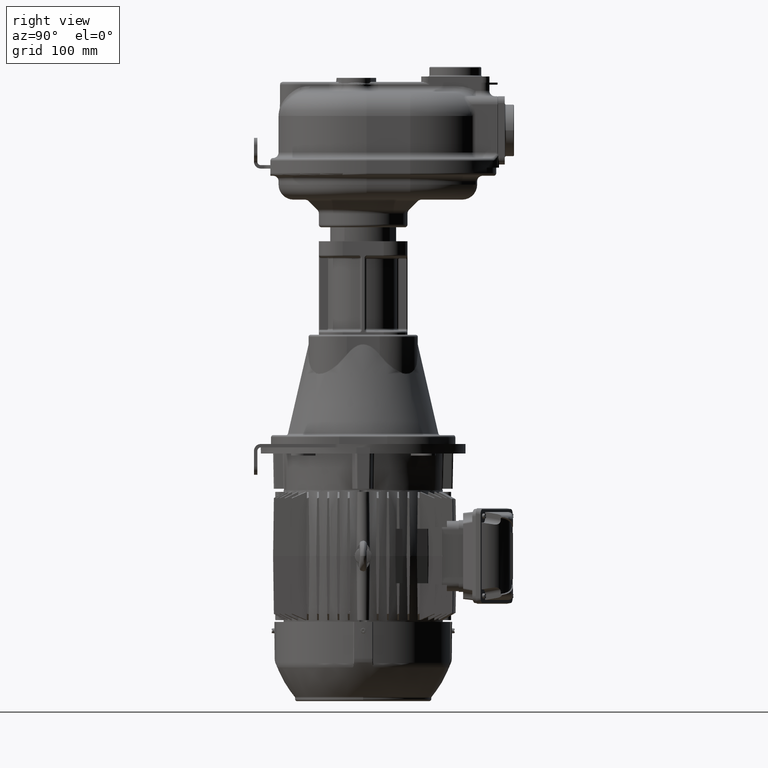
[diagram: clean part render]
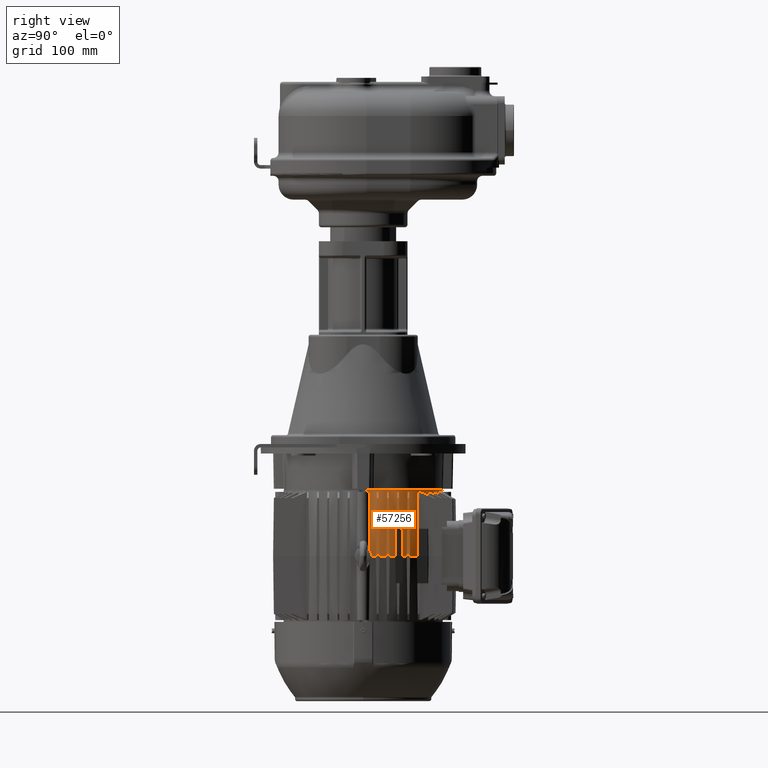
[diagram: same view with one face highlighted and labeled with its STEP entity id]
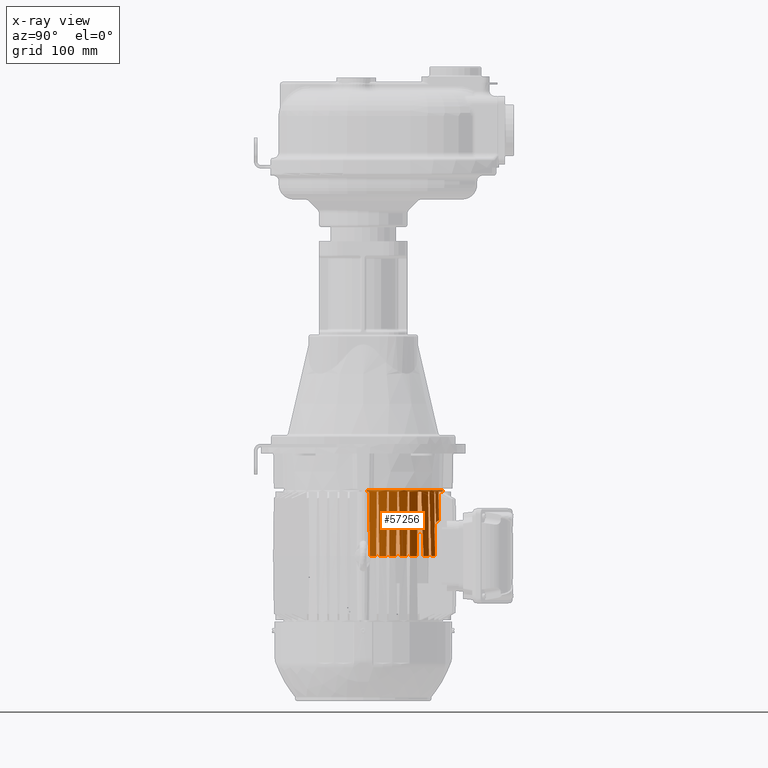
[diagram: x-ray of the same camera — body ghosted, the highlighted face saturated]
A machine part, right view. The second image highlights one B-rep face of the part: STEP entity #57256.
The next image is the same camera in x-ray: the body ghosted, the highlighted face saturated — about 0% of this face is hidden behind the body in this view.
In plain terms, the highlighted conical surface has half-angle 1 deg.
Its self-contained STEP definition (entity closure, byte-faithful):
#5899=CARTESIAN_POINT('',(0.E0,1.6E2,-5.000001E2));
#5900=DIRECTION('',(0.E0,0.E0,1.E0));
#5901=DIRECTION('',(9.989571498478E-1,4.565755981274E-2,0.E0));
#5902=AXIS2_PLACEMENT_3D('',#5899,#5900,#5901);
#6878=CARTESIAN_POINT('',(0.E0,1.6E2,-5.026001E2));
#6879=DIRECTION('',(0.E0,0.E0,-1.E0));
#6880=DIRECTION('',(9.971700773493E-1,7.517869937216E-2,0.E0));
#6881=AXIS2_PLACEMENT_3D('',#6878,#6879,#6880);
#7033=CARTESIAN_POINT('',(5.311731482918E0,2.765273670767E2,-5.026001E2));
#7034=CARTESIAN_POINT('',(5.313071894641E0,2.765222712879E2,-5.023119621164E2));
#7035=CARTESIAN_POINT('',(5.315753653074E0,2.765120708563E2,-5.017351856971E2));
#7036=CARTESIAN_POINT('',(5.319779076563E0,2.764967436724E2,-5.008685205860E2));
#7037=CARTESIAN_POINT('',(5.322464554953E0,2.764865078068E2,-5.002897405764E2));
#7038=CARTESIAN_POINT('',(5.323807756643E0,2.764813854425E2,-5.000001E2));
#7040=CARTESIAN_POINT('',(3.802582807013E1,2.710607824885E2,-5.451001E2));
#7041=CARTESIAN_POINT('',(3.796372650600E1,2.709945203718E2,-5.403561609374E2));
#7042=CARTESIAN_POINT('',(3.783971291929E1,2.708621608184E2,-5.308827618944E2));
#7043=CARTESIAN_POINT('',(3.765426242200E1,2.706641173011E2,-5.167161966796E2));
#7044=CARTESIAN_POINT('',(3.753100616265E1,2.705324164312E2,-5.073006498800E2));
#7045=CARTESIAN_POINT('',(3.746947259403E1,2.704666483274E2,-5.026001E2));
#7047=CARTESIAN_POINT('',(4.993052740597E1,2.654219341605E2,-5.026001E2));
#7048=CARTESIAN_POINT('',(4.986448188289E1,2.655506576651E2,-5.076453181238E2));
#7049=CARTESIAN_POINT('',(4.973203030250E1,2.658084323916E2,-5.177632955828E2));
#7050=CARTESIAN_POINT('',(4.953227450021E1,2.661960654960E2,-5.330226431795E2));
#7051=CARTESIAN_POINT('',(4.939837866374E1,2.664551432539E2,-5.432509473746E2));
#7052=CARTESIAN_POINT('',(4.933124994859E1,2.665848440408E2,-5.483789105499E2));
#7054=CARTESIAN_POINT('',(5.314689576378E1,2.648513009926E2,-5.543484622449E2));
#7055=CARTESIAN_POINT('',(5.307121511279E1,2.647765267041E2,-5.485672166115E2));
#7056=CARTESIAN_POINT('',(5.292012811143E1,2.646272166527E2,-5.370256791706E2));
#7057=CARTESIAN_POINT('',(5.269432272362E1,2.644039697782E2,-5.197764034933E2));
#7058=CARTESIAN_POINT('',(5.254433144954E1,2.642556132481E2,-5.083185686701E2));
#7059=CARTESIAN_POINT('',(5.246947259403E1,2.641815541009E2,-5.026001E2));
#7061=CARTESIAN_POINT('',(5.37E1,2.653974934472E2,-5.966001E2));
#7062=CARTESIAN_POINT('',(5.37E1,2.653132668665E2,-5.923006480985E2));
#7063=CARTESIAN_POINT('',(5.37E1,2.651450551819E2,-5.837161950876E2));
#7064=CARTESIAN_POINT('',(5.37E1,2.648934646323E2,-5.708829792208E2));
#7065=CARTESIAN_POINT('',(5.37E1,2.647262181319E2,-5.623562551765E2));
#7066=CARTESIAN_POINT('',(5.37E1,2.646427154397E2,-5.581001E2));
#7068=CARTESIAN_POINT('',(0.E0,1.6E2,-5.966001E2));
#7069=DIRECTION('',(0.E0,0.E0,1.E0));
#7070=DIRECTION('',(5.385109551258E-1,8.426185087034E-1,0.E0));
#7071=AXIS2_PLACEMENT_3D('',#7068,#7069,#7070);
#7073=CARTESIAN_POINT('',(6.493052740597E1,2.569064929711E2,-5.026001E2));
#7074=CARTESIAN_POINT('',(6.479657741282E1,2.572112379461E2,-5.128325412240E2));
#7075=CARTESIAN_POINT('',(6.452682770315E1,2.578224929621E2,-5.334387240580E2));
#7076=CARTESIAN_POINT('',(6.411669016899E1,2.587444960458E2,-5.647691341110E2));
#7077=CARTESIAN_POINT('',(6.383951733560E1,2.593626800933E2,-5.859423694348E2));
#7078=CARTESIAN_POINT('',(6.37E1,2.596726222438E2,-5.966001E2));
#7080=CARTESIAN_POINT('',(0.E0,1.6E2,-5.026001E2));
#7081=DIRECTION('',(0.E0,0.E0,1.E0));
#7082=DIRECTION('',(5.784004844715E-1,8.157529525310E-1,0.E0));
#7083=AXIS2_PLACEMENT_3D('',#7080,#7081,#7082);
#7085=CARTESIAN_POINT('',(6.87E1,2.562945046457E2,-5.966001E2));
#7086=CARTESIAN_POINT('',(6.856192596104E1,2.561668529072E2,-5.860526228785E2));
#7087=CARTESIAN_POINT('',(6.828667723021E1,2.559123352781E2,-5.650263697673E2));
#7088=CARTESIAN_POINT('',(6.787651561614E1,2.555329298701E2,-5.336941202493E2));
#7089=CARTESIAN_POINT('',(6.760485531255E1,2.552815494650E2,-5.129419871286E2));
#7090=CARTESIAN_POINT('',(6.746947259403E1,2.551562506463E2,-5.026001E2));
#7092=CARTESIAN_POINT('',(0.E0,1.6E2,-5.966001E2));
#7093=DIRECTION('',(0.E0,0.E0,1.E0));
#7094=DIRECTION('',(6.653188723454E-1,7.465593064861E-1,0.E0));
#7095=AXIS2_PLACEMENT_3D('',#7092,#7093,#7094);
#7097=CARTESIAN_POINT('',(7.993052740597E1,2.449585343434E2,-5.026001E2));
#7098=CARTESIAN_POINT('',(7.979755463355E1,2.453270777997E2,-5.127578913236E2));
#7099=CARTESIAN_POINT('',(7.952910817101E1,2.460667849866E2,-5.332645190965E2));
#7100=CARTESIAN_POINT('',(7.911899327153E1,2.471838338896E2,-5.645932000866E2));
#7101=CARTESIAN_POINT('',(7.884050450156E1,2.479336984696E2,-5.858669598177E2));
#7102=CARTESIAN_POINT('',(7.87E1,2.483098614253E2,-5.966001E2));
#7104=CARTESIAN_POINT('',(0.E0,1.6E2,-5.026001E2));
#7105=DIRECTION('',(0.E0,0.E0,1.E0));
#7106=DIRECTION('',(7.069920820267E-1,7.072214617441E-1,0.E0));
#7107=AXIS2_PLACEMENT_3D('',#7104,#7105,#7106);
#7109=CARTESIAN_POINT('',(8.270358786120E1,2.427035878612E2,-5.204841674393E2));
#7110=CARTESIAN_POINT('',(8.267752438844E1,2.426805033949E2,-5.184931785121E2));
#7111=CARTESIAN_POINT('',(8.262543122105E1,2.426343642187E2,-5.145137809709E2));
#7112=CARTESIAN_POINT('',(8.254739290823E1,2.425652448163E2,-5.085524335277E2));
#7113=CARTESIAN_POINT('',(8.249543478424E1,2.425192246058E2,-5.045833519526E2));
#7114=CARTESIAN_POINT('',(8.246947259403E1,2.424962293637E2,-5.026001E2));
#7116=CARTESIAN_POINT('',(8.249622936373E1,2.424694725940E2,-5.026001E2));
#7117=CARTESIAN_POINT('',(8.251922460576E1,2.424954347842E2,-5.045833519526E2));
#7118=CARTESIAN_POINT('',(8.256524481626E1,2.425473929082E2,-5.085524335277E2));
#7119=CARTESIAN_POINT('',(8.263436421871E1,2.426254312211E2,-5.145137809709E2));
#7120=CARTESIAN_POINT('',(8.268050339490E1,2.426775243884E2,-5.184931785121E2));
#7121=CARTESIAN_POINT('',(8.270358786120E1,2.427035878612E2,-5.204841674393E2));
#7123=CARTESIAN_POINT('',(0.E0,1.6E2,-5.026001E2));
#7124=DIRECTION('',(0.E0,0.E0,1.E0));
#7125=DIRECTION('',(7.283302438108E-1,6.852262808376E-1,0.E0));
#7126=AXIS2_PLACEMENT_3D('',#7123,#7124,#7125);
#7128=CARTESIAN_POINT('',(8.830986142530E1,2.387E2,-5.966001E2));
#7129=CARTESIAN_POINT('',(8.793369841841E1,2.388405045207E2,-5.858669583557E2));
#7130=CARTESIAN_POINT('',(8.718383376887E1,2.391189933162E2,-5.645931966757E2));
#7131=CARTESIAN_POINT('',(8.606678486535E1,2.395291082152E2,-5.332645157211E2));
#7132=CARTESIAN_POINT('',(8.532707774718E1,2.397975546525E2,-5.127578898771E2));
#7133=CARTESIAN_POINT('',(8.495853434336E1,2.399305274060E2,-5.026001E2));
#7135=CARTESIAN_POINT('',(0.E0,1.6E2,-5.966001E2));
#7136=DIRECTION('',(0.E0,0.E0,1.E0));
#7137=DIRECTION('',(8.140603715873E-1,5.807802608657E-1,0.E0));
#7138=AXIS2_PLACEMENT_3D('',#7135,#7136,#7137);
#7140=CARTESIAN_POINT('',(9.515625064626E1,2.274694725940E2,-5.026001E2));
#7141=CARTESIAN_POINT('',(9.528154946509E1,2.276048553127E2,-5.129419871370E2));
#7142=CARTESIAN_POINT('',(9.553292987033E1,2.278765156164E2,-5.336941202688E2));
#7143=CARTESIAN_POINT('',(9.591233527835E1,2.282866772305E2,-5.650263697868E2));
#7144=CARTESIAN_POINT('',(9.616685290735E1,2.285619259612E2,-5.860526228869E2));
#7145=CARTESIAN_POINT('',(9.629450464568E1,2.287E2,-5.966001E2));
#7147=CARTESIAN_POINT('',(0.E0,1.6E2,-5.026001E2));
#7148=DIRECTION('',(0.E0,0.E0,1.E0));
#7149=DIRECTION('',(8.307573829748E-1,5.566346832824E-1,0.E0));
#7150=AXIS2_PLACEMENT_3D('',#7147,#7148,#7149);
#7152=CARTESIAN_POINT('',(9.967262224380E1,2.237E2,-5.966001E2));
#7153=CARTESIAN_POINT('',(9.936268007142E1,2.238395173454E2,-5.859423686829E2));
#7154=CARTESIAN_POINT('',(9.874449599444E1,2.241166901920E2,-5.647691323566E2));
#7155=CARTESIAN_POINT('',(9.782249291056E1,2.245268277259E2,-5.334387223160E2));
#7156=CARTESIAN_POINT('',(9.721123792389E1,2.247965774226E2,-5.128325404775E2));
#7157=CARTESIAN_POINT('',(9.690649297107E1,2.249305274060E2,-5.026001E2));
#7159=CARTESIAN_POINT('',(0.E0,1.6E2,-5.966001E2));
#7160=DIRECTION('',(0.E0,0.E0,1.E0));
#7161=DIRECTION('',(8.910157749470E-1,4.539723436461E-1,0.E0));
#7162=AXIS2_PLACEMENT_3D('',#7159,#7160,#7161);
#7164=CARTESIAN_POINT('',(1.041815541009E2,2.124694725940E2,-5.026001E2));
#7165=CARTESIAN_POINT('',(1.043173417753E2,2.126067265360E2,-5.130849299024E2));
#7166=CARTESIAN_POINT('',(1.045883951921E2,2.128808180123E2,-5.340227803321E2));
#7167=CARTESIAN_POINT('',(1.049883044208E2,2.132855253768E2,-5.649383796721E2));
#7168=CARTESIAN_POINT('',(1.052607020720E2,2.135614049698E2,-5.860128243521E2));
#7169=CARTESIAN_POINT('',(1.053974934472E2,2.137E2,-5.966001E2));
#7171=CARTESIAN_POINT('',(0.E0,1.6E2,-5.026001E2));
#7172=DIRECTION('',(0.E0,0.E0,1.E0));
#7173=DIRECTION('',(9.037583287368E-1,4.280430857272E-1,0.E0));
#7174=AXIS2_PLACEMENT_3D('',#7171,#7172,#7173);
#7176=CARTESIAN_POINT('',(1.067926210735E2,2.092236286834E2,-5.566001E2));
#7177=CARTESIAN_POINT('',(1.066396438860E2,2.093029265789E2,-5.505425330246E2));
#7178=CARTESIAN_POINT('',(1.063341388308E2,2.094610199094E2,-5.384657820377E2));
#7179=CARTESIAN_POINT('',(1.058772489593E2,2.096966473324E2,-5.204662010016E2));
#7180=CARTESIAN_POINT('',(1.055735538623E2,2.098527342900E2,-5.085427168500E2));
#7181=CARTESIAN_POINT('',(1.054219341605E2,2.099305274060E2,-5.026001E2));
#7183=CARTESIAN_POINT('',(1.080690359266E2,2.080978700033E2,-5.966001E2));
#7184=CARTESIAN_POINT('',(1.079551779972E2,2.081615040694E2,-5.921231040478E2));
#7185=CARTESIAN_POINT('',(1.077277053293E2,2.082884772036E2,-5.831908152538E2));
#7186=CARTESIAN_POINT('',(1.073872345184E2,2.084780493422E2,-5.698576587456E2));
#7187=CARTESIAN_POINT('',(1.071607404587E2,2.086038436955E2,-5.610120705236E2));
#7188=CARTESIAN_POINT('',(1.070476164915E2,2.086665936756E2,-5.566001E2));
#7190=CARTESIAN_POINT('',(0.E0,1.6E2,-5.966001E2));
#7191=DIRECTION('',(0.E0,0.E0,1.E0));
#7192=DIRECTION('',(9.449674269947E-1,3.271644264265E-1,0.E0));
#7193=AXIS2_PLACEMENT_3D('',#7190,#7191,#7192);
#7195=CARTESIAN_POINT('',(1.104666483274E2,1.974694725940E2,-5.026001E2));
#7196=CARTESIAN_POINT('',(1.106135780371E2,1.976069421098E2,-5.131013975863E2));
#7197=CARTESIAN_POINT('',(1.109066388342E2,1.978813108525E2,-5.340604284015E2));
#7198=CARTESIAN_POINT('',(1.113374571163E2,1.982851490311E2,-5.649096306216E2));
#7199=CARTESIAN_POINT('',(1.116316318838E2,1.985612393217E2,-5.860001704956E2));
#7200=CARTESIAN_POINT('',(1.117793881937E2,1.987E2,-5.966001E2));
#7202=CARTESIAN_POINT('',(0.E0,1.6E2,-5.026001E2));
#7203=DIRECTION('',(0.E0,0.E0,1.E0));
#7204=DIRECTION('',(9.541115271453E-1,2.994514881720E-1,0.E0));
#7205=AXIS2_PLACEMENT_3D('',#7202,#7203,#7204);
#7207=CARTESIAN_POINT('',(1.133870875583E2,1.937E2,-5.966001E2));
#7208=CARTESIAN_POINT('',(1.131529646483E2,1.938386777838E2,-5.860065028030E2));
#7209=CARTESIAN_POINT('',(1.126858623645E2,1.941147313982E2,-5.649187646317E2));
#7210=CARTESIAN_POINT('',(1.119887080650E2,1.945248838866E2,-5.335872122239E2));
#7211=CARTESIAN_POINT('',(1.115262170053E2,1.947957444273E2,-5.128961729943E2));
#7212=CARTESIAN_POINT('',(1.112955525810E2,1.949305274060E2,-5.026001E2));
#7214=CARTESIAN_POINT('',(0.E0,1.6E2,-5.966001E2));
#7215=DIRECTION('',(0.E0,0.E0,1.E0));
#7216=DIRECTION('',(9.797230574088E-1,2.003565092069E-1,0.E0));
#7217=AXIS2_PLACEMENT_3D('',#7214,#7215,#7216);
#7219=CARTESIAN_POINT('',(1.144638133670E2,1.824694725940E2,-5.026001E2));
#7220=CARTESIAN_POINT('',(1.146210954486E2,1.826047645225E2,-5.129350516775E2));
#7221=CARTESIAN_POINT('',(1.149364951115E2,1.828763037583E2,-5.336779364288E2));
#7222=CARTESIAN_POINT('',(1.154120770430E2,1.832864641748E2,-5.650100944641E2));
#7223=CARTESIAN_POINT('',(1.157308156627E2,1.835618346454E2,-5.860456472767E2));
#7224=CARTESIAN_POINT('',(1.158906019699E2,1.837E2,-5.966001E2));
#7226=CARTESIAN_POINT('',(0.E0,1.6E2,-5.026001E2));
#7227=DIRECTION('',(0.E0,0.E0,1.E0));
#7228=DIRECTION('',(9.852953353073E-1,1.708598906168E-1,0.E0));
#7229=AXIS2_PLACEMENT_3D('',#7226,#7227,#7228);
#7231=CARTESIAN_POINT('',(1.168016764647E2,1.787E2,-5.966001E2));
#7232=CARTESIAN_POINT('',(1.165925199072E2,1.788384708324E2,-5.860223118218E2));
#7233=CARTESIAN_POINT('',(1.161752243728E2,1.791142485511E2,-5.649556493280E2));
#7234=CARTESIAN_POINT('',(1.155523832584E2,1.795244043114E2,-5.336238469772E2));
#7235=CARTESIAN_POINT('',(1.151391801307E2,1.797955389120E2,-5.129118723099E2));
#7236=CARTESIAN_POINT('',(1.149330929127E2,1.799305274060E2,-5.026001E2));
#7238=CARTESIAN_POINT('',(0.E0,1.6E2,-5.966001E2));
#7239=DIRECTION('',(0.E0,0.E0,1.E0));
#7240=DIRECTION('',(9.963842515472E-1,8.496130453712E-2,0.E0));
#7241=AXIS2_PLACEMENT_3D('',#7238,#7239,#7240);
#7243=CARTESIAN_POINT('',(1.178546663032E2,1.699912022322E2,-5.959280384393E2));
#7244=CARTESIAN_POINT('',(1.178569290827E2,1.700108014840E2,-5.961520589120E2));
#7245=CARTESIAN_POINT('',(1.178591871031E2,1.700304007399E2,-5.963760794322E2));
#7246=CARTESIAN_POINT('',(1.178614403652E2,1.7005E2,-5.966001000001E2));
#7248=CARTESIAN_POINT('',(1.163182621930E2,1.687694725940E2,-5.026001E2));
#7249=CARTESIAN_POINT('',(1.164876782879E2,1.689037396405E2,-5.128567609279E2));
#7250=CARTESIAN_POINT('',(1.168273772150E2,1.691732606722E2,-5.334454750502E2));
#7251=CARTESIAN_POINT('',(1.173394966931E2,1.695804878205E2,-5.645535607002E2));
#7252=CARTESIAN_POINT('',(1.176826553781E2,1.698539667571E2,-5.854446192164E2));
#7253=CARTESIAN_POINT('',(1.178546663032E2,1.699912022322E2,-5.959280384393E2));
#7255=CARTESIAN_POINT('',(1.164813854425E2,1.653238077566E2,-5.000001E2));
#7256=CARTESIAN_POINT('',(1.164865077968E2,1.653224645576E2,-5.002897400100E2));
#7257=CARTESIAN_POINT('',(1.164967436490E2,1.653197790827E2,-5.008685192643E2));
#7258=CARTESIAN_POINT('',(1.165120708330E2,1.653157536592E2,-5.017351843784E2));
#7259=CARTESIAN_POINT('',(1.165222712779E2,1.653130718973E2,-5.023119615512E2));
#7260=CARTESIAN_POINT('',(1.165273670767E2,1.653117314829E2,-5.026001E2));
#7270=CARTESIAN_POINT('',(0.E0,1.6E2,-5.026001E2));
#7271=DIRECTION('',(0.E0,0.E0,-1.E0));
#7272=DIRECTION('',(4.553626914485E-2,9.989626860861E-1,0.E0));
#7273=AXIS2_PLACEMENT_3D('',#7270,#7271,#7272);
#7347=CARTESIAN_POINT('',(0.E0,1.6E2,-5.026001E2));
#7348=DIRECTION('',(0.E0,0.E0,-1.E0));
#7349=DIRECTION('',(7.517869937216E-2,9.971700773493E-1,0.E0));
#7350=AXIS2_PLACEMENT_3D('',#7347,#7348,#7349);
#7447=CARTESIAN_POINT('',(0.E0,1.6E2,-5.451001E2));
#7448=DIRECTION('',(0.E0,0.E0,-1.E0));
#7449=DIRECTION('',(3.239267449742E-1,9.460821655070E-1,0.E0));
#7450=AXIS2_PLACEMENT_3D('',#7447,#7448,#7449);
#22537=CARTESIAN_POINT('',(1.053974934472E2,2.137E2,-5.966001E2));
#22544=CARTESIAN_POINT('',(9.629450464568E1,2.287E2,-5.966001E2));
#27761=CARTESIAN_POINT('',(0.E0,1.6E2,-5.566001E2));
#27762=DIRECTION('',(0.E0,0.E0,-1.E0));
#27763=DIRECTION('',(9.081704734950E-1,4.186005148969E-1,0.E0));
#27764=AXIS2_PLACEMENT_3D('',#27761,#27762,#27763);
#28039=CARTESIAN_POINT('',(8.830986142530E1,2.387E2,-5.966001E2));
#28083=CARTESIAN_POINT('',(8.249622936373E1,2.424694725940E2,-5.026001E2));
#28092=CARTESIAN_POINT('',(8.495853434336E1,2.399305274060E2,-5.026001E2));
#28295=CARTESIAN_POINT('',(8.246947259403E1,2.424962293637E2,-5.026001E2));
#28322=CARTESIAN_POINT('',(7.993052740597E1,2.449585343434E2,-5.026001E2));
#33031=CARTESIAN_POINT('',(5.314689576378E1,2.648513009926E2,
-5.543484622449E2));
#33032=CARTESIAN_POINT('',(5.318053451809E1,2.648364342420E2,
-5.544600663218E2));
#33033=CARTESIAN_POINT('',(5.324472138430E1,2.648082407825E2,
-5.546838860437E2));
#33034=CARTESIAN_POINT('',(5.333173283468E1,2.647705952799E2,
-5.550211932367E2));
#33035=CARTESIAN_POINT('',(5.340948255452E1,2.647376137434E2,
-5.553598123816E2));
#33036=CARTESIAN_POINT('',(5.347798420452E1,2.647093088309E2,
-5.556994672354E2));
#33037=CARTESIAN_POINT('',(5.353728865868E1,2.646856744627E2,
-5.560400549693E2));
#33038=CARTESIAN_POINT('',(5.358744536334E1,2.646667036367E2,
-5.563815512493E2));
#33039=CARTESIAN_POINT('',(5.362848035683E1,2.646523971383E2,
-5.567238766253E2));
#33040=CARTESIAN_POINT('',(5.366041517071E1,2.646427565666E2,
-5.570670309418E2));
#33041=CARTESIAN_POINT('',(5.368324710340E1,2.646377920311E2,
-5.574109684250E2));
#33042=CARTESIAN_POINT('',(5.369695347551E1,2.646375164148E2,
-5.577554146357E2));
#33043=CARTESIAN_POINT('',(5.37E1,2.646404612685E2,-5.579852042756E2));
#33044=CARTESIAN_POINT('',(5.37E1,2.646427154397E2,-5.581001E2));
#33062=CARTESIAN_POINT('',(4.07E1,2.701089052138E2,-5.451001E2));
#33063=CARTESIAN_POINT('',(4.083103156064E1,2.700604714880E2,-5.451001E2));
#33064=CARTESIAN_POINT('',(4.109324512075E1,2.699630903532E2,
-5.451040620227E2));
#33065=CARTESIAN_POINT('',(4.148673594281E1,2.698155732894E2,
-5.451219327993E2));
#33066=CARTESIAN_POINT('',(4.187995957178E1,2.696667707246E2,
-5.451517570125E2));
#33067=CARTESIAN_POINT('',(4.227251264714E1,2.695168362053E2,
-5.451935435960E2));
#33068=CARTESIAN_POINT('',(4.266397290510E1,2.693659368238E2,
-5.452472835029E2));
#33069=CARTESIAN_POINT('',(4.305391632867E1,2.692142469751E2,
-5.453129490029E2));
#33070=CARTESIAN_POINT('',(4.344191309701E1,2.690619499495E2,
-5.453904926706E2));
#33071=CARTESIAN_POINT('',(4.382753113893E1,2.689092366174E2,
-5.454798468946E2));
#33072=CARTESIAN_POINT('',(4.421033334809E1,2.687563065419E2,
-5.455809222712E2));
#33073=CARTESIAN_POINT('',(4.458988244260E1,2.686033660453E2,
-5.456936075361E2));
#33074=CARTESIAN_POINT('',(4.496574563312E1,2.684506262084E2,
-5.458177703720E2));
#33075=CARTESIAN_POINT('',(4.533749170956E1,2.682983038785E2,
-5.459532559969E2));
#33076=CARTESIAN_POINT('',(4.570469495053E1,2.681466198849E2,
-5.460998877671E2));
#33077=CARTESIAN_POINT('',(4.606693631976E1,2.679957982774E2,
-5.462574672547E2));
#33078=CARTESIAN_POINT('',(4.642380505818E1,2.678460653583E2,
-5.464257744945E2));
#33079=CARTESIAN_POINT('',(4.677490207534E1,2.676976478910E2,
-5.466045694316E2));
#33080=CARTESIAN_POINT('',(4.711983742668E1,2.675507737571E2,
-5.467935905330E2));
#33081=CARTESIAN_POINT('',(4.745823621709E1,2.674056690221E2,
-5.469925576646E2));
#33082=CARTESIAN_POINT('',(4.778974205160E1,2.672625559276E2,
-5.472011748150E2));
#33083=CARTESIAN_POINT('',(4.811401520090E1,2.671216531335E2,
-5.474191297112E2));
#33084=CARTESIAN_POINT('',(4.843073620050E1,2.669831735888E2,
-5.476460971686E2));
#33085=CARTESIAN_POINT('',(4.873960198749E1,2.668473256785E2,
-5.478817366185E2));
#33086=CARTESIAN_POINT('',(4.904034434565E1,2.667143044264E2,
-5.481257094080E2));
#33087=CARTESIAN_POINT('',(4.923522768923E1,2.666276467331E2,
-5.482936543037E2));
#33088=CARTESIAN_POINT('',(4.933124994859E1,2.665848440408E2,
-5.483789105499E2));
#33116=CARTESIAN_POINT('',(0.E0,1.6E2,-5.026001E2));
#33117=DIRECTION('',(0.E0,0.E0,-1.E0));
#33118=DIRECTION('',(4.280430857272E-1,9.037583287368E-1,0.E0));
#33119=AXIS2_PLACEMENT_3D('',#33116,#33117,#33118);
#42247=VERTEX_POINT('',#28322);
#42270=CARTESIAN_POINT('',(3.802582807013E1,2.710607824885E2,-5.451001E2));
#42272=VERTEX_POINT('',#42270);
#42326=CARTESIAN_POINT('',(1.163182621930E2,1.687694725940E2,-5.026001E2));
#42328=VERTEX_POINT('',#42326);
#42359=CARTESIAN_POINT('',(1.178546663032E2,1.699912022322E2,
-5.959280384393E2));
#42361=VERTEX_POINT('',#42359);
#42402=VERTEX_POINT('',#28092);
#42404=VERTEX_POINT('',#28295);
#42476=CARTESIAN_POINT('',(8.769472594026E0,2.763182621930E2,-5.026001E2));
#42477=VERTEX_POINT('',#42476);
#42510=VERTEX_POINT('',#22544);
#42515=VERTEX_POINT('',#28039);
#42539=VERTEX_POINT('',#22537);
#42549=VERTEX_POINT('',#28083);
#42559=CARTESIAN_POINT('',(8.270358786120E1,2.427035878612E2,
-5.204841674393E2));
#42560=VERTEX_POINT('',#42559);
#42563=VERTEX_POINT('',#7033);
#42564=VERTEX_POINT('',#7038);
#42582=CARTESIAN_POINT('',(1.165273670767E2,1.653117314829E2,-5.026001E2));
#42584=VERTEX_POINT('',#42582);
#42689=VERTEX_POINT('',#7219);
#42690=VERTEX_POINT('',#7224);
#42691=VERTEX_POINT('',#7207);
#42692=VERTEX_POINT('',#7212);
#42693=CARTESIAN_POINT('',(1.104666483274E2,1.974694725940E2,-5.026001E2));
#42694=VERTEX_POINT('',#42693);
#42695=VERTEX_POINT('',#7200);
#42696=VERTEX_POINT('',#7176);
#42697=VERTEX_POINT('',#7181);
#42699=CARTESIAN_POINT('',(1.041815541009E2,2.124694725940E2,-5.026001E2));
#42700=VERTEX_POINT('',#42699);
#42701=VERTEX_POINT('',#7140);
#42702=CARTESIAN_POINT('',(9.967262224380E1,2.237E2,-5.966001E2));
#42703=VERTEX_POINT('',#42702);
#42704=CARTESIAN_POINT('',(9.690649297107E1,2.249305274060E2,-5.026001E2));
#42705=VERTEX_POINT('',#42704);
#42714=VERTEX_POINT('',#7183);
#42715=VERTEX_POINT('',#7188);
#42716=CARTESIAN_POINT('',(1.164813854425E2,1.653238077566E2,-5.000001E2));
#42717=VERTEX_POINT('',#42716);
#42734=VERTEX_POINT('',#7246);
#42735=VERTEX_POINT('',#7231);
#42736=VERTEX_POINT('',#7236);
#42748=CARTESIAN_POINT('',(3.746947259403E1,2.704666483274E2,-5.026001E2));
#42749=VERTEX_POINT('',#42748);
#42750=CARTESIAN_POINT('',(4.993052740597E1,2.654219341605E2,-5.026001E2));
#42751=CARTESIAN_POINT('',(5.246947259403E1,2.641815541009E2,-5.026001E2));
#42752=VERTEX_POINT('',#42750);
#42753=VERTEX_POINT('',#42751);
#42754=CARTESIAN_POINT('',(7.87E1,2.483098614253E2,-5.966001E2));
#42755=CARTESIAN_POINT('',(6.87E1,2.562945046457E2,-5.966001E2));
#42756=VERTEX_POINT('',#42754);
#42757=VERTEX_POINT('',#42755);
#42758=CARTESIAN_POINT('',(6.746947259403E1,2.551562506463E2,-5.026001E2));
#42759=CARTESIAN_POINT('',(6.493052740597E1,2.569064929711E2,-5.026001E2));
#42760=VERTEX_POINT('',#42758);
#42761=VERTEX_POINT('',#42759);
#42762=VERTEX_POINT('',#7054);
#42763=VERTEX_POINT('',#7052);
#42764=VERTEX_POINT('',#33062);
#42768=VERTEX_POINT('',#33044);
#42769=VERTEX_POINT('',#7078);
#42770=CARTESIAN_POINT('',(5.37E1,2.653974934472E2,-5.966001E2));
#42771=VERTEX_POINT('',#42770);
#57162=CARTESIAN_POINT('',(0.E0,1.6E2,-5.483001E2));
#57163=DIRECTION('',(0.E0,0.E0,-1.E0));
#57164=DIRECTION('',(0.E0,1.E0,0.E0));
#57165=AXIS2_PLACEMENT_3D('',#57162,#57163,#57164);
#57166=CONICAL_SURFACE('',#57165,1.174460645191E2,1.E0);
#57167=ORIENTED_EDGE('',*,*,#56360,.T.);
#57168=ORIENTED_EDGE('',*,*,#56379,.F.);
#57170=ORIENTED_EDGE('',*,*,#57169,.T.);
#57172=ORIENTED_EDGE('',*,*,#57171,.T.);
#57174=ORIENTED_EDGE('',*,*,#57173,.F.);
#57176=ORIENTED_EDGE('',*,*,#57175,.T.);
#57178=ORIENTED_EDGE('',*,*,#57177,.T.);
#57180=ORIENTED_EDGE('',*,*,#57179,.F.);
#57182=ORIENTED_EDGE('',*,*,#57181,.T.);
#57184=ORIENTED_EDGE('',*,*,#57183,.F.);
#57186=ORIENTED_EDGE('',*,*,#57185,.T.);
#57188=ORIENTED_EDGE('',*,*,#57187,.F.);
#57190=ORIENTED_EDGE('',*,*,#57189,.F.);
#57192=ORIENTED_EDGE('',*,*,#57191,.F.);
#57194=ORIENTED_EDGE('',*,*,#57193,.F.);
#57196=ORIENTED_EDGE('',*,*,#57195,.F.);
#57198=ORIENTED_EDGE('',*,*,#57197,.F.);
#57200=ORIENTED_EDGE('',*,*,#57199,.F.);
#57202=ORIENTED_EDGE('',*,*,#57201,.F.);
#57204=ORIENTED_EDGE('',*,*,#57203,.F.);
#57206=ORIENTED_EDGE('',*,*,#57205,.F.);
#57208=ORIENTED_EDGE('',*,*,#57207,.F.);
#57210=ORIENTED_EDGE('',*,*,#57209,.F.);
#57212=ORIENTED_EDGE('',*,*,#57211,.F.);
#57214=ORIENTED_EDGE('',*,*,#57213,.F.);
#57216=ORIENTED_EDGE('',*,*,#57215,.F.);
#57218=ORIENTED_EDGE('',*,*,#57217,.F.);
#57220=ORIENTED_EDGE('',*,*,#57219,.F.);
#57222=ORIENTED_EDGE('',*,*,#57221,.F.);
#57224=ORIENTED_EDGE('',*,*,#57223,.F.);
#57226=ORIENTED_EDGE('',*,*,#57225,.F.);
#57228=ORIENTED_EDGE('',*,*,#57227,.T.);
#57230=ORIENTED_EDGE('',*,*,#57229,.F.);
#57232=ORIENTED_EDGE('',*,*,#57231,.F.);
#57234=ORIENTED_EDGE('',*,*,#57233,.F.);
#57236=ORIENTED_EDGE('',*,*,#57235,.F.);
#57238=ORIENTED_EDGE('',*,*,#57237,.F.);
#57240=ORIENTED_EDGE('',*,*,#57239,.F.);
#57242=ORIENTED_EDGE('',*,*,#57241,.F.);
#57244=ORIENTED_EDGE('',*,*,#57243,.F.);
#57246=ORIENTED_EDGE('',*,*,#57245,.F.);
#57248=ORIENTED_EDGE('',*,*,#57247,.F.);
#57250=ORIENTED_EDGE('',*,*,#57249,.F.);
#57251=ORIENTED_EDGE('',*,*,#57155,.F.);
#57252=ORIENTED_EDGE('',*,*,#57107,.T.);
#57253=ORIENTED_EDGE('',*,*,#56331,.F.);
#57254=EDGE_LOOP('',(#57167,#57168,#57170,#57172,#57174,#57176,#57178,#57180,
#57182,#57184,#57186,#57188,#57190,#57192,#57194,#57196,#57198,#57200,#57202,
#57204,#57206,#57208,#57210,#57212,#57214,#57216,#57218,#57220,#57222,#57224,
#57226,#57228,#57230,#57232,#57234,#57236,#57238,#57240,#57242,#57244,#57246,
#57248,#57250,#57251,#57252,#57253));
#57255=FACE_OUTER_BOUND('',#57254,.F.);
#57256=ADVANCED_FACE('',(#57255),#57166,.T.);
#5903=CIRCLE('',#5902,1.166029848831E2);
#6882=CIRCLE('',#6881,1.166483680519E2);
#7039=B_SPLINE_CURVE_WITH_KNOTS('',3,(#7033,#7034,#7035,#7036,#7037,#7038),
.UNSPECIFIED.,.F.,.F.,(4,1,1,4),(0.E0,3.333333333333E-1,6.666666666667E-1,1.E0),
.UNSPECIFIED.);
#7046=B_SPLINE_CURVE_WITH_KNOTS('',3,(#7040,#7041,#7042,#7043,#7044,#7045),
.UNSPECIFIED.,.F.,.F.,(4,1,1,4),(0.E0,3.333333333333E-1,6.666666666667E-1,1.E0),
.UNSPECIFIED.);
#7053=B_SPLINE_CURVE_WITH_KNOTS('',3,(#7047,#7048,#7049,#7050,#7051,#7052),
.UNSPECIFIED.,.F.,.F.,(4,1,1,4),(0.E0,3.333333333333E-1,6.666666666667E-1,1.E0),
.UNSPECIFIED.);
#7060=B_SPLINE_CURVE_WITH_KNOTS('',3,(#7054,#7055,#7056,#7057,#7058,#7059),
.UNSPECIFIED.,.F.,.F.,(4,1,1,4),(0.E0,3.333333333333E-1,6.666666666667E-1,1.E0),
.UNSPECIFIED.);
#7067=B_SPLINE_CURVE_WITH_KNOTS('',3,(#7061,#7062,#7063,#7064,#7065,#7066),
.UNSPECIFIED.,.F.,.F.,(4,1,1,4),(0.E0,3.333333333333E-1,6.666666666667E-1,1.E0),
.UNSPECIFIED.);
#7072=CIRCLE('',#7071,1.182891441551E2);
#7079=B_SPLINE_CURVE_WITH_KNOTS('',3,(#7073,#7074,#7075,#7076,#7077,#7078),
.UNSPECIFIED.,.F.,.F.,(4,1,1,4),(0.E0,3.333333333333E-1,6.666666666667E-1,1.E0),
.UNSPECIFIED.);
#7084=CIRCLE('',#7083,1.166483680519E2);
#7091=B_SPLINE_CURVE_WITH_KNOTS('',3,(#7085,#7086,#7087,#7088,#7089,#7090),
.UNSPECIFIED.,.F.,.F.,(4,1,1,4),(0.E0,3.333333333333E-1,6.666666666667E-1,1.E0),
.UNSPECIFIED.);
#7096=CIRCLE('',#7095,1.182891441551E2);
#7103=B_SPLINE_CURVE_WITH_KNOTS('',3,(#7097,#7098,#7099,#7100,#7101,#7102),
.UNSPECIFIED.,.F.,.F.,(4,1,1,4),(0.E0,3.333333333333E-1,6.666666666667E-1,1.E0),
.UNSPECIFIED.);
#7108=CIRCLE('',#7107,1.166483680519E2);
#7115=B_SPLINE_CURVE_WITH_KNOTS('',3,(#7109,#7110,#7111,#7112,#7113,#7114),
.UNSPECIFIED.,.F.,.F.,(4,1,1,4),(0.E0,3.333333333333E-1,6.666666666667E-1,1.E0),
.UNSPECIFIED.);
#7122=B_SPLINE_CURVE_WITH_KNOTS('',3,(#7116,#7117,#7118,#7119,#7120,#7121),
.UNSPECIFIED.,.F.,.F.,(4,1,1,4),(0.E0,3.333333333333E-1,6.666666666667E-1,1.E0),
.UNSPECIFIED.);
#7127=CIRCLE('',#7126,1.166483680519E2);
#7134=B_SPLINE_CURVE_WITH_KNOTS('',3,(#7128,#7129,#7130,#7131,#7132,#7133),
.UNSPECIFIED.,.F.,.F.,(4,1,1,4),(0.E0,3.333333333333E-1,6.666666666667E-1,1.E0),
.UNSPECIFIED.);
#7139=CIRCLE('',#7138,1.182891441551E2);
#7146=B_SPLINE_CURVE_WITH_KNOTS('',3,(#7140,#7141,#7142,#7143,#7144,#7145),
.UNSPECIFIED.,.F.,.F.,(4,1,1,4),(0.E0,3.333333333333E-1,6.666666666667E-1,1.E0),
.UNSPECIFIED.);
#7151=CIRCLE('',#7150,1.166483680519E2);
#7158=B_SPLINE_CURVE_WITH_KNOTS('',3,(#7152,#7153,#7154,#7155,#7156,#7157),
.UNSPECIFIED.,.F.,.F.,(4,1,1,4),(0.E0,3.333333333333E-1,6.666666666667E-1,1.E0),
.UNSPECIFIED.);
#7163=CIRCLE('',#7162,1.182891441551E2);
#7170=B_SPLINE_CURVE_WITH_KNOTS('',3,(#7164,#7165,#7166,#7167,#7168,#7169),
.UNSPECIFIED.,.F.,.F.,(4,1,1,4),(0.E0,3.333333333333E-1,6.666666666667E-1,1.E0),
.UNSPECIFIED.);
#7175=CIRCLE('',#7174,1.166483680519E2);
#7182=B_SPLINE_CURVE_WITH_KNOTS('',3,(#7176,#7177,#7178,#7179,#7180,#7181),
.UNSPECIFIED.,.F.,.F.,(4,1,1,4),(0.E0,3.333333333333E-1,6.666666666667E-1,1.E0),
.UNSPECIFIED.);
#7189=B_SPLINE_CURVE_WITH_KNOTS('',3,(#7183,#7184,#7185,#7186,#7187,#7188),
.UNSPECIFIED.,.F.,.F.,(4,1,1,4),(0.E0,3.333333333333E-1,6.666666666667E-1,1.E0),
.UNSPECIFIED.);
#7194=CIRCLE('',#7193,1.182891441551E2);
#7201=B_SPLINE_CURVE_WITH_KNOTS('',3,(#7195,#7196,#7197,#7198,#7199,#7200),
.UNSPECIFIED.,.F.,.F.,(4,1,1,4),(0.E0,3.333333333333E-1,6.666666666667E-1,1.E0),
.UNSPECIFIED.);
#7206=CIRCLE('',#7205,1.166483680519E2);
#7213=B_SPLINE_CURVE_WITH_KNOTS('',3,(#7207,#7208,#7209,#7210,#7211,#7212),
.UNSPECIFIED.,.F.,.F.,(4,1,1,4),(0.E0,3.333333333333E-1,6.666666666667E-1,1.E0),
.UNSPECIFIED.);
#7218=CIRCLE('',#7217,1.182891441551E2);
#7225=B_SPLINE_CURVE_WITH_KNOTS('',3,(#7219,#7220,#7221,#7222,#7223,#7224),
.UNSPECIFIED.,.F.,.F.,(4,1,1,4),(0.E0,3.333333333333E-1,6.666666666667E-1,1.E0),
.UNSPECIFIED.);
#7230=CIRCLE('',#7229,1.166483680519E2);
#7237=B_SPLINE_CURVE_WITH_KNOTS('',3,(#7231,#7232,#7233,#7234,#7235,#7236),
.UNSPECIFIED.,.F.,.F.,(4,1,1,4),(0.E0,3.333333333333E-1,6.666666666667E-1,1.E0),
.UNSPECIFIED.);
#7242=CIRCLE('',#7241,1.182891441551E2);
#7247=B_SPLINE_CURVE_WITH_KNOTS('',3,(#7243,#7244,#7245,#7246),.UNSPECIFIED.,
.F.,.F.,(4,4),(0.E0,1.E0),.UNSPECIFIED.);
#7254=B_SPLINE_CURVE_WITH_KNOTS('',3,(#7248,#7249,#7250,#7251,#7252,#7253),
.UNSPECIFIED.,.F.,.F.,(4,1,1,4),(0.E0,3.333333333333E-1,6.666666666667E-1,1.E0),
.UNSPECIFIED.);
#7261=B_SPLINE_CURVE_WITH_KNOTS('',3,(#7255,#7256,#7257,#7258,#7259,#7260),
.UNSPECIFIED.,.F.,.F.,(4,1,1,4),(0.E0,3.333333333333E-1,6.666666666667E-1,1.E0),
.UNSPECIFIED.);
#7274=CIRCLE('',#7273,1.166483680519E2);
#7351=CIRCLE('',#7350,1.166483680519E2);
#7451=CIRCLE('',#7450,1.173902083113E2);
#27765=CIRCLE('',#27764,1.175909415580E2);
#33045=B_SPLINE_CURVE_WITH_KNOTS('',3,(#33031,#33032,#33033,#33034,#33035,
#33036,#33037,#33038,#33039,#33040,#33041,#33042,#33043,#33044),.UNSPECIFIED.,
.F.,.F.,(4,1,1,1,1,1,1,1,1,1,1,4),(0.E0,9.090909090909E-2,1.818181818182E-1,
2.727272727273E-1,3.636363636364E-1,4.545454545455E-1,5.454545454545E-1,
6.363636363636E-1,7.272727272727E-1,8.181818181818E-1,9.090909090909E-1,1.E0),
.UNSPECIFIED.);
#33089=B_SPLINE_CURVE_WITH_KNOTS('',3,(#33062,#33063,#33064,#33065,#33066,
#33067,#33068,#33069,#33070,#33071,#33072,#33073,#33074,#33075,#33076,#33077,
#33078,#33079,#33080,#33081,#33082,#33083,#33084,#33085,#33086,#33087,#33088),
.UNSPECIFIED.,.F.,.F.,(4,1,1,1,1,1,1,1,1,1,1,1,1,1,1,1,1,1,1,1,1,1,1,1,4),(0.E0,
4.166666666667E-2,8.333333333333E-2,1.25E-1,1.666666666667E-1,2.083333333333E-1,
2.5E-1,2.916666666667E-1,3.333333333333E-1,3.75E-1,4.166666666667E-1,
4.583333333333E-1,5.E-1,5.416666666667E-1,5.833333333333E-1,6.25E-1,
6.666666666667E-1,7.083333333333E-1,7.5E-1,7.916666666667E-1,8.333333333333E-1,
8.75E-1,9.166666666667E-1,9.583333333333E-1,1.E0),.UNSPECIFIED.);
#33120=CIRCLE('',#33119,1.166483680519E2);
#56331=EDGE_CURVE('',#42717,#42584,#7261,.T.);
#56360=EDGE_CURVE('',#42717,#42564,#5903,.T.);
#56379=EDGE_CURVE('',#42563,#42564,#7039,.T.);
#57107=EDGE_CURVE('',#42328,#42584,#6882,.T.);
#57155=EDGE_CURVE('',#42328,#42361,#7254,.T.);
#57169=EDGE_CURVE('',#42563,#42477,#7274,.T.);
#57171=EDGE_CURVE('',#42477,#42749,#7351,.T.);
#57173=EDGE_CURVE('',#42272,#42749,#7046,.T.);
#57175=EDGE_CURVE('',#42272,#42764,#7451,.T.);
#57177=EDGE_CURVE('',#42764,#42763,#33089,.T.);
#57179=EDGE_CURVE('',#42752,#42763,#7053,.T.);
#57181=EDGE_CURVE('',#42752,#42753,#33120,.T.);
#57183=EDGE_CURVE('',#42762,#42753,#7060,.T.);
#57185=EDGE_CURVE('',#42762,#42768,#33045,.T.);
#57187=EDGE_CURVE('',#42771,#42768,#7067,.T.);
#57189=EDGE_CURVE('',#42769,#42771,#7072,.T.);
#57191=EDGE_CURVE('',#42761,#42769,#7079,.T.);
#57193=EDGE_CURVE('',#42760,#42761,#7084,.T.);
#57195=EDGE_CURVE('',#42757,#42760,#7091,.T.);
#57197=EDGE_CURVE('',#42756,#42757,#7096,.T.);
#57199=EDGE_CURVE('',#42247,#42756,#7103,.T.);
#57201=EDGE_CURVE('',#42404,#42247,#7108,.T.);
#57203=EDGE_CURVE('',#42560,#42404,#7115,.T.);
#57205=EDGE_CURVE('',#42549,#42560,#7122,.T.);
#57207=EDGE_CURVE('',#42402,#42549,#7127,.T.);
#57209=EDGE_CURVE('',#42515,#42402,#7134,.T.);
#57211=EDGE_CURVE('',#42510,#42515,#7139,.T.);
#57213=EDGE_CURVE('',#42701,#42510,#7146,.T.);
#57215=EDGE_CURVE('',#42705,#42701,#7151,.T.);
#57217=EDGE_CURVE('',#42703,#42705,#7158,.T.);
#57219=EDGE_CURVE('',#42539,#42703,#7163,.T.);
#57221=EDGE_CURVE('',#42700,#42539,#7170,.T.);
#57223=EDGE_CURVE('',#42697,#42700,#7175,.T.);
#57225=EDGE_CURVE('',#42696,#42697,#7182,.T.);
#57227=EDGE_CURVE('',#42696,#42715,#27765,.T.);
#57229=EDGE_CURVE('',#42714,#42715,#7189,.T.);
#57231=EDGE_CURVE('',#42695,#42714,#7194,.T.);
#57233=EDGE_CURVE('',#42694,#42695,#7201,.T.);
#57235=EDGE_CURVE('',#42692,#42694,#7206,.T.);
#57237=EDGE_CURVE('',#42691,#42692,#7213,.T.);
#57239=EDGE_CURVE('',#42690,#42691,#7218,.T.);
#57241=EDGE_CURVE('',#42689,#42690,#7225,.T.);
#57243=EDGE_CURVE('',#42736,#42689,#7230,.T.);
#57245=EDGE_CURVE('',#42735,#42736,#7237,.T.);
#57247=EDGE_CURVE('',#42734,#42735,#7242,.T.);
#57249=EDGE_CURVE('',#42361,#42734,#7247,.T.);